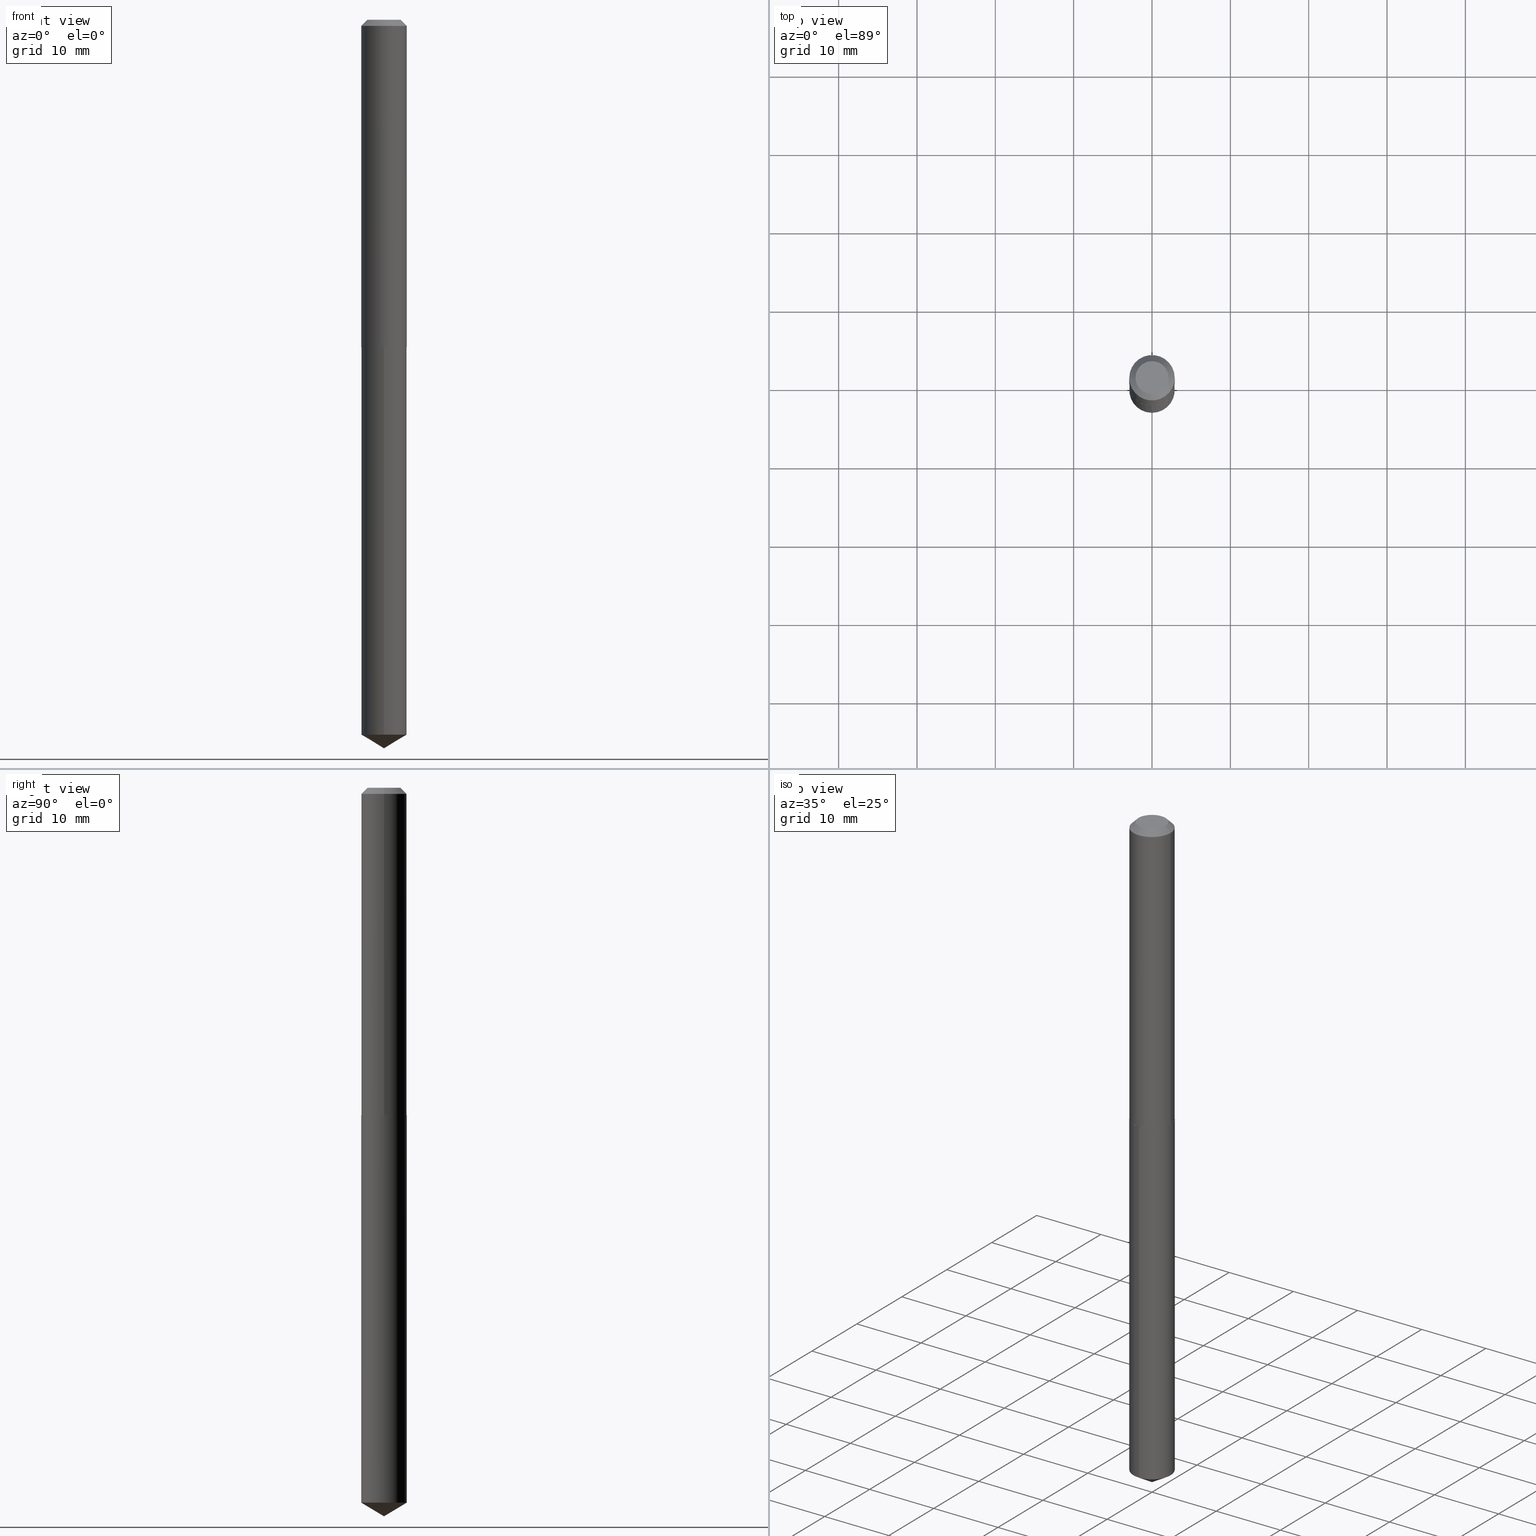
[diagram: canonical four-view strip — front | top / right | iso, engineering-drawing reading convention]
A machine part, canonical four-view strip (front | top / right | iso — engineering-drawing reading convention). The complete STEP part file that produces these views, byte-faithful:
ISO-10303-21;
HEADER;
FILE_DESCRIPTION (( 'STEP AP203' ),
    '1' );
FILE_NAME ('68332.STEP',
    '2024-04-23T13:07:52',
    ( '' ),
    ( '' ),
    'SwSTEP 2.0',
    'SolidWorks 2023',
    '' );
FILE_SCHEMA (( 'CONFIG_CONTROL_DESIGN' ));
ENDSEC;

DATA;
#1 = CARTESIAN_POINT ( 'NONE',  ( 8.953840329367400053E-29, -1.278370856767391255E-14, -3.661399999999999988 ) ) ;
#2 = CIRCLE ( 'NONE', #54, 0.1141500000000000015 ) ;
#3 = CIRCLE ( 'NONE', #245, 0.1141500000000000015 ) ;
#4 = CARTESIAN_POINT ( 'NONE',  ( 0.08289999999999998759, -7.304849611498646429E-16, 2.388061258383121680E-19 ) ) ;
#5 = CONICAL_SURFACE ( 'NONE', #35, 65.52281426576919898, 1.029744258676659641 ) ;
#6 = DIRECTION ( 'NONE',  ( 1.000000000000000000, -6.982962677686269866E-15, 0.000000000000000000 ) ) ;
#7 = EDGE_CURVE ( 'NONE', #240, #353, #32, .T. ) ;
#8 = FACE_OUTER_BOUND ( 'NONE', #284, .T. ) ;
#9 = APPROVAL ( #141, 'UNSPECIFIED' ) ;
#10 = DIRECTION ( 'NONE',  ( 2.445468806185136597E-29, -3.491481338843145583E-15, -1.000000000000000000 ) ) ;
#11 = CIRCLE ( 'NONE', #121, 0.1141500000000000015 ) ;
#12 = CIRCLE ( 'NONE', #189, 0.1136500000000005700 ) ;
#13 = ADVANCED_FACE ( 'NONE', ( #248 ), #349, .T. ) ;
#14 = DIRECTION ( 'NONE',  ( -6.982962677686264344E-15, -1.000000000000000000, 2.393208930060677491E-15 ) ) ;
#15 = FACE_OUTER_BOUND ( 'NONE', #174, .T. ) ;
#16 = VECTOR ( 'NONE', #370, 39.37007874015748143 ) ;
#17 = APPROVAL_DATE_TIME ( #145, #329 ) ;
#18 = EDGE_LOOP ( 'NONE', ( #268, #357, #331, #85 ) ) ;
#19 = EDGE_CURVE ( 'NONE', #236, #26, #176, .T. ) ;
#20 = ORIENTED_EDGE ( 'NONE', *, *, #326, .F. ) ;
#21 = PERSON_AND_ORGANIZATION ( #37, #55 ) ;
#22 = ORIENTED_EDGE ( 'NONE', *, *, #40, .T. ) ;
#23 = VECTOR ( 'NONE', #252, 39.37007874015748854 ) ;
#24 = PERSON_AND_ORGANIZATION ( #37, #55 ) ;
#25 = VERTEX_POINT ( 'NONE', #156 ) ;
#26 = VERTEX_POINT ( 'NONE', #341 ) ;
#27 = CARTESIAN_POINT ( 'NONE',  ( -7.971051896578468938E-16, -0.1141500000000057469, -1.645599999999999508 ) ) ;
#28 = VECTOR ( 'NONE', #366, 39.37007874015748854 ) ;
#29 = LOCAL_TIME ( 9, 7, 52.00000000000000000, #295 ) ;
#30 = APPROVAL_DATE_TIME ( #362, #241 ) ;
#31 = DIRECTION ( 'NONE',  ( -6.982962677686264344E-15, -1.000000000000000000, 4.786417860121354983E-15 ) ) ;
#32 = LINE ( 'NONE', #27, #216 ) ;
#33 = CALENDAR_DATE ( 2024, 23, 4 ) ;
#34 = FACE_OUTER_BOUND ( 'NONE', #51, .T. ) ;
#35 = AXIS2_PLACEMENT_3D ( 'NONE', #191, #102, #101 ) ;
#36 = DIRECTION ( 'NONE',  ( -1.000000000000000000, 6.982962677686265922E-15, -4.876176775795935793E-29 ) ) ;
#37 = PERSON ( 'UNSPECIFIED', 'UNSPECIFIED', 'UNSPECIFIED', ('UNSPECIFIED'), ('UNSPECIFIED'), ('UNSPECIFIED') ) ;
#38 = DIRECTION ( 'NONE',  ( -6.982962677686264344E-15, -1.000000000000000000, 2.393208930060677491E-15 ) ) ;
#39 = FACE_OUTER_BOUND ( 'NONE', #206, .T. ) ;
#40 = EDGE_CURVE ( 'NONE', #47, #240, #97, .T. ) ;
#41 = CARTESIAN_POINT ( 'NONE',  ( 4.024263467458259965E-29, -5.745581691200278949E-15, -1.645599999999999730 ) ) ;
#42 = AXIS2_PLACEMENT_3D ( 'NONE', #286, #342, #6 ) ;
#43 = DIRECTION ( 'NONE',  ( 1.000000000000000000, -6.982962677686268288E-15, 0.000000000000000000 ) ) ;
#44 = FACE_OUTER_BOUND ( 'NONE', #149, .T. ) ;
#45 = EDGE_CURVE ( 'NONE', #202, #240, #152, .T. ) ;
#46 = CALENDAR_DATE ( 2024, 23, 4 ) ;
#47 = VERTEX_POINT ( 'NONE', #365 ) ;
#48 = AXIS2_PLACEMENT_3D ( 'NONE', #348, #10, #104 ) ;
#49 = ORIENTED_EDGE ( 'NONE', *, *, #70, .F. ) ;
#50 = DIRECTION ( 'NONE',  ( 0.000000000000000000, 0.000000000000000000, 1.000000000000000000 ) ) ;
#51 = EDGE_LOOP ( 'NONE', ( #88, #57, #171, #270 ) ) ;
#52 = EDGE_CURVE ( 'NONE', #263, #238, #249, .T. ) ;
#53 = ORIENTED_EDGE ( 'NONE', *, *, #230, .F. ) ;
#54 = AXIS2_PLACEMENT_3D ( 'NONE', #63, #389, #96 ) ;
#55 = ORGANIZATION ( 'UNSPECIFIED', 'UNSPECIFIED', '' ) ;
#56 = CC_DESIGN_PERSON_AND_ORGANIZATION_ASSIGNMENT ( #211, #247, ( #83 ) ) ;
#57 = ORIENTED_EDGE ( 'NONE', *, *, #277, .T. ) ;
#58 = FACE_OUTER_BOUND ( 'NONE', #229, .T. ) ;
#59 = PERSON_AND_ORGANIZATION_ROLE ( 'design_supplier' ) ;
#60 = DIRECTION ( 'NONE',  ( -2.445471081714961586E-29, 3.491478080154921275E-15, 1.000000000000000000 ) ) ;
#61 = CC_DESIGN_APPROVAL ( #241, ( #83 ) ) ;
#62 = CARTESIAN_POINT ( 'NONE',  ( 0.000000000000000000, 0.000000000000000000, 0.000000000000000000 ) ) ;
#63 = CARTESIAN_POINT ( 'NONE',  ( 7.642090019328607041E-31, -1.091087918388490883E-16, -0.03125000000000022898 ) ) ;
#64 = EDGE_CURVE ( 'NONE', #328, #236, #246, .T. ) ;
#65 = MANIFOLD_SOLID_BREP ( 'Body-Move/Copy2[2]', #132 ) ;
#66 = CARTESIAN_POINT ( 'NONE',  ( -0.1141500000000000986, 8.110845328701550628E-16, -5.614964405525979576E-30 ) ) ;
#67 = AXIS2_PLACEMENT_3D ( 'NONE', #213, #336, #182 ) ;
#68 = AXIS2_PLACEMENT_3D ( 'NONE', #306, #317, #225 ) ;
#69 = CYLINDRICAL_SURFACE ( 'NONE', #250, 0.1141500000000000015 ) ;
#70 = EDGE_CURVE ( 'NONE', #26, #236, #2, .T. ) ;
#71 = DIRECTION ( 'NONE',  ( -6.982962677686264344E-15, -1.000000000000000000, 2.393208930060677491E-15 ) ) ;
#72 = FACE_OUTER_BOUND ( 'NONE', #115, .T. ) ;
#73 = FACE_OUTER_BOUND ( 'NONE', #18, .T. ) ;
#74 = VECTOR ( 'NONE', #279, 39.37007874015748143 ) ;
#75 = AXIS2_PLACEMENT_3D ( 'NONE', #203, #325, #269 ) ;
#76 = DIRECTION ( 'NONE',  ( -2.445471081714961586E-29, 3.491478080154921275E-15, 1.000000000000000000 ) ) ;
#77 = ADVANCED_FACE ( 'NONE', ( #34 ), #138, .T. ) ;
#78 = COORDINATED_UNIVERSAL_TIME_OFFSET ( 5, 0, .BEHIND. ) ;
#79 = ORIENTED_EDGE ( 'NONE', *, *, #230, .T. ) ;
#80 = CC_DESIGN_PERSON_AND_ORGANIZATION_ASSIGNMENT ( #298, #201, ( #175 ) ) ;
#81 = COORDINATED_UNIVERSAL_TIME_OFFSET ( 5, 0, .BEHIND. ) ;
#82 = VERTEX_POINT ( 'NONE', #91 ) ;
#83 = SECURITY_CLASSIFICATION ( '', '', #126 ) ;
#84 = CARTESIAN_POINT ( 'NONE',  ( 0.000000000000000000, 0.000000000000000000, 0.000000000000000000 ) ) ;
#85 = ORIENTED_EDGE ( 'NONE', *, *, #264, .F. ) ;
#86 = APPLICATION_CONTEXT ( 'configuration controlled 3d designs of mechanical parts and assemblies' ) ;
#87 = ORIENTED_EDGE ( 'NONE', *, *, #150, .F. ) ;
#88 = ORIENTED_EDGE ( 'NONE', *, *, #52, .F. ) ;
#89 = CC_DESIGN_SECURITY_CLASSIFICATION ( #83, ( #178 ) ) ;
#90 = SHAPE_DEFINITION_REPRESENTATION ( #124, #372 ) ;
#91 = CARTESIAN_POINT ( 'NONE',  ( 0.1136500000000005700, -6.539195399519326814E-15, -1.645599999999999508 ) ) ;
#92 = EDGE_CURVE ( 'NONE', #25, #26, #98, .T. ) ;
#93 = CARTESIAN_POINT ( 'NONE',  ( 0.1141500000000000986, -7.971051896578880132E-16, 5.566155789571065091E-30 ) ) ;
#94 = EDGE_CURVE ( 'NONE', #47, #160, #275, .T. ) ;
#95 = DATE_TIME_ROLE ( 'classification_date' ) ;
#96 = DIRECTION ( 'NONE',  ( 1.000000000000000000, -6.982962677686266711E-15, 0.000000000000000000 ) ) ;
#97 = CIRCLE ( 'NONE', #200, 0.1141500000000000015 ) ;
#98 = LINE ( 'NONE', #99, #308 ) ;
#99 = CARTESIAN_POINT ( 'NONE',  ( -0.1141500000000000015, 6.879963978190382223E-16, -0.03125000000000022898 ) ) ;
#100 = CC_DESIGN_DATE_AND_TIME_ASSIGNMENT ( #143, #205, ( #390 ) ) ;
#101 = DIRECTION ( 'NONE',  ( -6.982962677686267499E-15, -1.000000000000000000, 3.468864327941553588E-15 ) ) ;
#102 = DIRECTION ( 'NONE',  ( -2.445471081714961586E-29, 3.491478080154921275E-15, 1.000000000000000000 ) ) ;
#103 = CARTESIAN_POINT ( 'NONE',  ( 7.642090019328607041E-31, -1.091087918388490883E-16, -0.03125000000000022898 ) ) ;
#104 = DIRECTION ( 'NONE',  ( -1.000000000000000000, 6.982962677686266711E-15, 0.000000000000000000 ) ) ;
#105 = APPLICATION_CONTEXT ( 'configuration controlled 3d designs of mechanical parts and assemblies' ) ;
#106 = LINE ( 'NONE', #321, #128 ) ;
#107 = CC_DESIGN_APPROVAL ( #329, ( #390 ) ) ;
#108 =( NAMED_UNIT ( * ) SI_UNIT ( $, .STERADIAN. ) SOLID_ANGLE_UNIT ( ) );
#109 = DIMENSIONAL_EXPONENTS ( 1.000000000000000000, 0.000000000000000000, 0.000000000000000000, 0.000000000000000000, 0.000000000000000000, 0.000000000000000000, 0.000000000000000000 ) ;
#110 = VERTEX_POINT ( 'NONE', #4 ) ;
#111 = CC_DESIGN_PERSON_AND_ORGANIZATION_ASSIGNMENT ( #265, #112, ( #178 ) ) ;
#112 = PERSON_AND_ORGANIZATION_ROLE ( 'creator' ) ;
#113 = ORIENTED_EDGE ( 'NONE', *, *, #7, .F. ) ;
#114 = CARTESIAN_POINT ( 'NONE',  ( -7.971051896578468938E-16, -0.1141500000000057469, -1.645599999999999508 ) ) ;
#115 = EDGE_LOOP ( 'NONE', ( #142, #303, #232, #113 ) ) ;
#116 = CARTESIAN_POINT ( 'NONE',  ( -5.839929314523198503E-48, 8.337871319499114970E-34, 2.388061258337343770E-19 ) ) ;
#117 = ORIENTED_EDGE ( 'NONE', *, *, #40, .F. ) ;
#118 = APPROVAL_STATUS ( 'not_yet_approved' ) ;
#119 = EDGE_LOOP ( 'NONE', ( #20, #382, #117 ) ) ;
#120 = CARTESIAN_POINT ( 'NONE',  ( 4.024263467458259965E-29, -5.745581691200278160E-15, -1.645599999999999508 ) ) ;
#121 = AXIS2_PLACEMENT_3D ( 'NONE', #217, #339, #215 ) ;
#122 = AXIS2_PLACEMENT_3D ( 'NONE', #260, #287, #318 ) ;
#123 = DIRECTION ( 'NONE',  ( 1.000000000000000000, -6.982962677686269866E-15, 0.000000000000000000 ) ) ;
#124 = PRODUCT_DEFINITION_SHAPE ( 'NONE', 'NONE',  #390 ) ;
#125 = DIRECTION ( 'NONE',  ( -2.445471081714961586E-29, 3.491478080154921275E-15, 1.000000000000000000 ) ) ;
#126 = SECURITY_CLASSIFICATION_LEVEL ( 'unclassified' ) ;
#127 = DIRECTION ( 'NONE',  ( -2.445468806185136597E-29, 3.491481338843145583E-15, 1.000000000000000000 ) ) ;
#128 = VECTOR ( 'NONE', #227, 39.37007874015748854 ) ;
#129 = DIRECTION ( 'NONE',  ( -2.445468806185136597E-29, 3.491481338843145583E-15, 1.000000000000000000 ) ) ;
#130 = CARTESIAN_POINT ( 'NONE',  ( 0.1141500000000000015, -9.062139814967364236E-16, -0.03125000000000022898 ) ) ;
#131 = DIRECTION ( 'NONE',  ( -6.982962677686264344E-15, -1.000000000000000000, 2.393208930060677491E-15 ) ) ;
#132 = CLOSED_SHELL ( 'NONE', ( #271, #212, #257, #346, #77, #157, #340, #285 ) ) ;
#133 = CARTESIAN_POINT ( 'NONE',  ( 4.024263467458259965E-29, -5.745581691200278949E-15, -1.645599999999999730 ) ) ;
#134 = ORIENTED_EDGE ( 'NONE', *, *, #92, .F. ) ;
#135 = FACE_OUTER_BOUND ( 'NONE', #204, .T. ) ;
#136 = EDGE_CURVE ( 'NONE', #238, #328, #188, .T. ) ;
#137 = DIRECTION ( 'NONE',  ( 1.000000000000000000, -6.982962677686269866E-15, 0.000000000000000000 ) ) ;
#138 = CONICAL_SURFACE ( 'NONE', #261, 0.1141500000000001958, 0.7853981633974482790 ) ;
#139 = DATE_AND_TIME ( #381, #320 ) ;
#140 = CONICAL_SURFACE ( 'NONE', #147, 0.1141500000000001958, 0.7853981633974482790 ) ;
#141 = APPROVAL_STATUS ( 'not_yet_approved' ) ;
#142 = ORIENTED_EDGE ( 'NONE', *, *, #150, .T. ) ;
#143 = DATE_AND_TIME ( #169, #183 ) ;
#144 = EDGE_LOOP ( 'NONE', ( #266, #294, #185, #49 ) ) ;
#145 = DATE_AND_TIME ( #46, #29 ) ;
#146 = ORIENTED_EDGE ( 'NONE', *, *, #222, .T. ) ;
#147 = AXIS2_PLACEMENT_3D ( 'NONE', #163, #283, #137 ) ;
#148 = DIRECTION ( 'NONE',  ( 1.000000000000000000, 0.000000000000000000, 0.000000000000000000 ) ) ;
#149 = EDGE_LOOP ( 'NONE', ( #288, #146 ) ) ;
#150 = EDGE_CURVE ( 'NONE', #240, #47, #11, .T. ) ;
#151 = CARTESIAN_POINT ( 'NONE',  ( 8.110845328701945059E-16, 0.1141499999999942422, -1.645599999999999952 ) ) ;
#152 = LINE ( 'NONE', #1, #23 ) ;
#153 = CC_DESIGN_PERSON_AND_ORGANIZATION_ASSIGNMENT ( #158, #59, ( #178 ) ) ;
#154 = CLOSED_SHELL ( 'NONE', ( #344, #253, #13, #305, #364 ) ) ;
#155 = CIRCLE ( 'NONE', #338, 0.1141500000000000015 ) ;
#156 = CARTESIAN_POINT ( 'NONE',  ( -0.08289999999999998759, 6.334420018996148552E-16, 2.388061258294954052E-19 ) ) ;
#157 = ADVANCED_FACE ( 'NONE', ( #335 ), #309, .T. ) ;
#158 = PERSON_AND_ORGANIZATION ( #37, #55 ) ;
#159 = DIRECTION ( 'NONE',  ( -2.445471081714961586E-29, 3.491478080154921275E-15, 1.000000000000000000 ) ) ;
#160 = VERTEX_POINT ( 'NONE', #218 ) ;
#161 = LOCAL_TIME ( 9, 7, 52.00000000000000000, #274 ) ;
#162 = DIRECTION ( 'NONE',  ( -2.445468806185136597E-29, 3.491481338843145583E-15, 1.000000000000000000 ) ) ;
#163 = CARTESIAN_POINT ( 'NONE',  ( 4.023040733055167724E-29, -5.743835950530858234E-15, -1.645099999999999785 ) ) ;
#164 = FACE_OUTER_BOUND ( 'NONE', #356, .T. ) ;
#165 = DIRECTION ( 'NONE',  ( -2.445471081714961586E-29, 3.491478080154921275E-15, 1.000000000000000000 ) ) ;
#166 = EDGE_CURVE ( 'NONE', #238, #26, #337, .T. ) ;
#167 = CARTESIAN_POINT ( 'NONE',  ( -2.919964657261599251E-48, 4.168935659749557485E-34, 1.194030629168671885E-19 ) ) ;
#168 = DIRECTION ( 'NONE',  ( -2.445468806185136597E-29, 3.491481338843145583E-15, 1.000000000000000000 ) ) ;
#169 = CALENDAR_DATE ( 2024, 23, 4 ) ;
#170 = AXIS2_PLACEMENT_3D ( 'NONE', #41, #165, #14 ) ;
#171 = ORIENTED_EDGE ( 'NONE', *, *, #264, .T. ) ;
#172 = APPLICATION_PROTOCOL_DEFINITION ( 'international standard', 'config_control_design', 1994, #86 ) ;
#173 = ORIENTED_EDGE ( 'NONE', *, *, #45, .F. ) ;
#174 = EDGE_LOOP ( 'NONE', ( #179, #22, #296, #380 ) ) ;
#175 = PRODUCT ( '68332', '68332', '', ( #231 ) ) ;
#176 = CIRCLE ( 'NONE', #243, 0.1141500000000000015 ) ;
#177 = ORIENTED_EDGE ( 'NONE', *, *, #92, .T. ) ;
#178 = PRODUCT_DEFINITION_FORMATION_WITH_SPECIFIED_SOURCE ( 'ANY', '', #175, .NOT_KNOWN. ) ;
#179 = ORIENTED_EDGE ( 'NONE', *, *, #94, .F. ) ;
#180 = CYLINDRICAL_SURFACE ( 'NONE', #68, 0.1141500000000000986 ) ;
#181 = DESIGN_CONTEXT ( 'detailed design', #105, 'design' ) ;
#182 = DIRECTION ( 'NONE',  ( 1.000000000000000000, -6.982962677686269866E-15, 0.000000000000000000 ) ) ;
#183 = LOCAL_TIME ( 9, 7, 52.00000000000000000, #81 ) ;
#184 = DATE_AND_TIME ( #33, #161 ) ;
#185 = ORIENTED_EDGE ( 'NONE', *, *, #64, .T. ) ;
#186 = CARTESIAN_POINT ( 'NONE',  ( 8.786113517340136323E-29, -1.254422886984030154E-14, -3.592811760338004756 ) ) ;
#187 = DIRECTION ( 'NONE',  ( -2.445468806185136877E-29, 3.491481338843145188E-15, 1.000000000000000000 ) ) ;
#188 = CIRCLE ( 'NONE', #67, 0.1141500000000001958 ) ;
#189 = AXIS2_PLACEMENT_3D ( 'NONE', #254, #162, #43 ) ;
#190 = DIRECTION ( 'NONE',  ( -2.445471081714961586E-29, 3.491478080154921275E-15, 1.000000000000000000 ) ) ;
#191 = CARTESIAN_POINT ( 'NONE',  ( -8.732454496991685576E-28, 1.246760637300565508E-13, 35.70867874015748100 ) ) ;
#192 = CYLINDRICAL_SURFACE ( 'NONE', #170, 0.1141500000000000015 ) ;
#193 = AXIS2_PLACEMENT_3D ( 'NONE', #167, #351, #36 ) ;
#194 = CARTESIAN_POINT ( 'NONE',  ( -0.1136500000000005700, -4.935400644834811315E-15, -1.645599999999999508 ) ) ;
#195 = CC_DESIGN_PERSON_AND_ORGANIZATION_ASSIGNMENT ( #24, #237, ( #390 ) ) ;
#196 = LINE ( 'NONE', #255, #371 ) ;
#197 = MANIFOLD_SOLID_BREP ( 'Body-Move/Copy2[1]', #154 ) ;
#198 = APPLICATION_PROTOCOL_DEFINITION ( 'international standard', 'config_control_design', 1994, #105 ) ;
#199 = ORIENTED_EDGE ( 'NONE', *, *, #166, .T. ) ;
#200 = AXIS2_PLACEMENT_3D ( 'NONE', #186, #210, #31 ) ;
#201 = PERSON_AND_ORGANIZATION_ROLE ( 'design_owner' ) ;
#202 = VERTEX_POINT ( 'NONE', #386 ) ;
#203 = CARTESIAN_POINT ( 'NONE',  ( 6.786437830069702545E-29, -1.789990790739299120E-15, -1.645599999999999508 ) ) ;
#204 = EDGE_LOOP ( 'NONE', ( #384, #208 ) ) ;
#205 = DATE_TIME_ROLE ( 'creation_date' ) ;
#206 = EDGE_LOOP ( 'NONE', ( #173, #379, #87 ) ) ;
#207 = EDGE_CURVE ( 'NONE', #82, #263, #291, .T. ) ;
#208 = ORIENTED_EDGE ( 'NONE', *, *, #277, .F. ) ;
#209 = AXIS2_PLACEMENT_3D ( 'NONE', #120, #244, #361 ) ;
#210 = DIRECTION ( 'NONE',  ( -2.445471081714961586E-29, 3.491478080154921275E-15, 1.000000000000000000 ) ) ;
#211 = PERSON_AND_ORGANIZATION ( #37, #55 ) ;
#212 = ADVANCED_FACE ( 'NONE', ( #58 ), #180, .T. ) ;
#213 = CARTESIAN_POINT ( 'NONE',  ( 4.023040733055167724E-29, -5.743835950530858234E-15, -1.645099999999999785 ) ) ;
#214 = APPROVAL_ROLE ( '' ) ;
#215 = DIRECTION ( 'NONE',  ( -6.982962677686264344E-15, -1.000000000000000000, 4.786417860121354983E-15 ) ) ;
#216 = VECTOR ( 'NONE', #125, 39.37007874015748143 ) ;
#217 = CARTESIAN_POINT ( 'NONE',  ( 8.786113517340136323E-29, -1.254422886984030154E-14, -3.592811760338004756 ) ) ;
#218 = CARTESIAN_POINT ( 'NONE',  ( 8.110845328702424292E-16, 0.1141499999999942422, -1.645599999999999952 ) ) ;
#219 = CARTESIAN_POINT ( 'NONE',  ( 0.1141500000000001958, -6.540941140188746740E-15, -1.645099999999999785 ) ) ;
#220 = AXIS2_PLACEMENT_3D ( 'NONE', #116, #168, #358 ) ;
#221 = DIRECTION ( 'NONE',  ( 6.090539988449798946E-15, 0.8571673007021168855, 0.5150380749100467170 ) ) ;
#222 = EDGE_CURVE ( 'NONE', #160, #353, #155, .T. ) ;
#223 = CARTESIAN_POINT ( 'NONE',  ( -0.1141500000000001958, -4.932751417660702481E-15, -1.645099999999999785 ) ) ;
#224 = ORIENTED_EDGE ( 'NONE', *, *, #64, .F. ) ;
#225 = DIRECTION ( 'NONE',  ( 1.000000000000000000, -6.982962677686266711E-15, 4.876176775795935232E-29 ) ) ;
#226 = CONICAL_SURFACE ( 'NONE', #48, 0.1141500000000000015, 0.7853981633974447263 ) ;
#227 = DIRECTION ( 'NONE',  ( 0.7071067811865474617, -2.468850131082256666E-15, 0.7071067811865474617 ) ) ;
#228 =( NAMED_UNIT ( * ) PLANE_ANGLE_UNIT ( ) SI_UNIT ( $, .RADIAN. ) );
#229 = EDGE_LOOP ( 'NONE', ( #352, #199, #333, #224 ) ) ;
#230 = EDGE_CURVE ( 'NONE', #110, #236, #316, .T. ) ;
#231 = MECHANICAL_CONTEXT ( 'NONE', #86, 'mechanical' ) ;
#232 = ORIENTED_EDGE ( 'NONE', *, *, #290, .F. ) ;
#233 = PRODUCT_RELATED_PRODUCT_CATEGORY ( 'detail', '', ( #175 ) ) ;
#234 = AXIS2_PLACEMENT_3D ( 'NONE', #62, #129, #313 ) ;
#235 = APPROVAL_PERSON_ORGANIZATION ( #307, #241, #214 ) ;
#236 = VERTEX_POINT ( 'NONE', #130 ) ;
#237 = PERSON_AND_ORGANIZATION_ROLE ( 'creator' ) ;
#238 = VERTEX_POINT ( 'NONE', #223 ) ;
#239 = PERSON_AND_ORGANIZATION ( #37, #55 ) ;
#240 = VERTEX_POINT ( 'NONE', #374 ) ;
#241 = APPROVAL ( #251, 'UNSPECIFIED' ) ;
#242 = CALENDAR_DATE ( 2024, 23, 4 ) ;
#243 = AXIS2_PLACEMENT_3D ( 'NONE', #312, #127, #280 ) ;
#244 = DIRECTION ( 'NONE',  ( -2.445468806185136597E-29, 3.491481338843145583E-15, 1.000000000000000000 ) ) ;
#245 = AXIS2_PLACEMENT_3D ( 'NONE', #289, #345, #71 ) ;
#246 = LINE ( 'NONE', #93, #74 ) ;
#247 = PERSON_AND_ORGANIZATION_ROLE ( 'classification_officer' ) ;
#248 = FACE_OUTER_BOUND ( 'NONE', #119, .T. ) ;
#249 = LINE ( 'NONE', #281, #28 ) ;
#250 = AXIS2_PLACEMENT_3D ( 'NONE', #375, #76, #131 ) ;
#251 = APPROVAL_STATUS ( 'not_yet_approved' ) ;
#252 = DIRECTION ( 'NONE',  ( -5.985567269335961790E-15, -0.8571673007021131108, 0.5150380749100526012 ) ) ;
#253 = ADVANCED_FACE ( 'NONE', ( #39 ), #5, .T. ) ;
#254 = CARTESIAN_POINT ( 'NONE',  ( 4.024263467458259965E-29, -5.745581691200278160E-15, -1.645599999999999508 ) ) ;
#255 = CARTESIAN_POINT ( 'NONE',  ( 8.953847884262811625E-29, -1.278369784267922746E-14, -3.661399999999999988 ) ) ;
#256 = APPROVAL_PERSON_ORGANIZATION ( #239, #9, #322 ) ;
#257 = ADVANCED_FACE ( 'NONE', ( #73 ), #140, .T. ) ;
#258 = PLANE ( 'NONE',  #193 ) ;
#259 = PLANE ( 'NONE',  #75 ) ;
#260 = CARTESIAN_POINT ( 'NONE',  ( -5.839929314523198503E-48, 8.337871319499114970E-34, 2.388061258337343770E-19 ) ) ;
#261 = AXIS2_PLACEMENT_3D ( 'NONE', #276, #388, #123 ) ;
#262 = APPROVAL_DATE_TIME ( #139, #9 ) ;
#263 = VERTEX_POINT ( 'NONE', #194 ) ;
#264 = EDGE_CURVE ( 'NONE', #82, #328, #106, .T. ) ;
#265 = PERSON_AND_ORGANIZATION ( #37, #55 ) ;
#266 = ORIENTED_EDGE ( 'NONE', *, *, #166, .F. ) ;
#267 = APPROVAL_ROLE ( '' ) ;
#268 = ORIENTED_EDGE ( 'NONE', *, *, #207, .T. ) ;
#269 = DIRECTION ( 'NONE',  ( 1.000000000000000000, -6.982962677686265922E-15, 4.876176775795935793E-29 ) ) ;
#270 = ORIENTED_EDGE ( 'NONE', *, *, #136, .F. ) ;
#271 = ADVANCED_FACE ( 'NONE', ( #164 ), #226, .T. ) ;
#272 = DIRECTION ( 'NONE',  ( 2.445471081714961026E-29, -3.491478080154921275E-15, -1.000000000000000000 ) ) ;
#273 = ORIENTED_EDGE ( 'NONE', *, *, #19, .T. ) ;
#274 = COORDINATED_UNIVERSAL_TIME_OFFSET ( 5, 0, .BEHIND. ) ;
#275 = LINE ( 'NONE', #151, #314 ) ;
#276 = CARTESIAN_POINT ( 'NONE',  ( 4.023040733055167724E-29, -5.743835950530858234E-15, -1.645099999999999785 ) ) ;
#277 = EDGE_CURVE ( 'NONE', #263, #82, #12, .T. ) ;
#278 = COORDINATED_UNIVERSAL_TIME_OFFSET ( 5, 0, .BEHIND. ) ;
#279 = DIRECTION ( 'NONE',  ( -2.445468806185136877E-29, 3.491481338843145188E-15, 1.000000000000000000 ) ) ;
#280 = DIRECTION ( 'NONE',  ( 1.000000000000000000, -6.982962677686266711E-15, 0.000000000000000000 ) ) ;
#281 = CARTESIAN_POINT ( 'NONE',  ( -0.1141500000000001958, -4.932751417660702481E-15, -1.645099999999999785 ) ) ;
#282 = CARTESIAN_POINT ( 'NONE',  ( 0.1141500000000000015, -8.922346382844693739E-16, -0.03125000000000022898 ) ) ;
#283 = DIRECTION ( 'NONE',  ( -2.445468806185136597E-29, 3.491481338843145583E-15, 1.000000000000000000 ) ) ;
#284 = EDGE_LOOP ( 'NONE', ( #327, #359 ) ) ;
#285 = ADVANCED_FACE ( 'NONE', ( #8 ), #258, .F. ) ;
#286 = CARTESIAN_POINT ( 'NONE',  ( 4.023040733055167724E-29, -5.743835950530858234E-15, -1.645099999999999785 ) ) ;
#287 = DIRECTION ( 'NONE',  ( -2.445468806185136597E-29, 3.491481338843145583E-15, 1.000000000000000000 ) ) ;
#288 = ORIENTED_EDGE ( 'NONE', *, *, #290, .T. ) ;
#289 = CARTESIAN_POINT ( 'NONE',  ( 4.024263467458259965E-29, -5.745581691200278949E-15, -1.645599999999999730 ) ) ;
#290 = EDGE_CURVE ( 'NONE', #353, #160, #3, .T. ) ;
#291 = CIRCLE ( 'NONE', #209, 0.1136500000000005700 ) ;
#292 = DIRECTION ( 'NONE',  ( 6.982962677686265922E-15, 1.000000000000000000, -3.491478080154921275E-15 ) ) ;
#293 = CC_DESIGN_DATE_AND_TIME_ASSIGNMENT ( #184, #95, ( #83 ) ) ;
#294 = ORIENTED_EDGE ( 'NONE', *, *, #136, .T. ) ;
#295 = COORDINATED_UNIVERSAL_TIME_OFFSET ( 5, 0, .BEHIND. ) ;
#296 = ORIENTED_EDGE ( 'NONE', *, *, #7, .T. ) ;
#297 = EDGE_CURVE ( 'NONE', #110, #25, #350, .T. ) ;
#298 = PERSON_AND_ORGANIZATION ( #37, #55 ) ;
#299 = ORIENTED_EDGE ( 'NONE', *, *, #376, .F. ) ;
#300 =( CONVERSION_BASED_UNIT ( 'INCH', #323 ) LENGTH_UNIT ( ) NAMED_UNIT ( #109 ) );
#301 = AXIS2_PLACEMENT_3D ( 'NONE', #84, #50, #148 ) ;
#302 = EDGE_LOOP ( 'NONE', ( #53, #299, #177, #324 ) ) ;
#303 = ORIENTED_EDGE ( 'NONE', *, *, #94, .T. ) ;
#304 = UNCERTAINTY_MEASURE_WITH_UNIT (LENGTH_MEASURE( 1.000000000000000082E-05 ), #300, 'distance_accuracy_value', 'NONE');
#305 = ADVANCED_FACE ( 'NONE', ( #15 ), #69, .T. ) ;
#306 = CARTESIAN_POINT ( 'NONE',  ( 0.000000000000000000, 0.000000000000000000, 0.000000000000000000 ) ) ;
#307 = PERSON_AND_ORGANIZATION ( #37, #55 ) ;
#308 = VECTOR ( 'NONE', #363, 39.37007874015748143 ) ;
#309 = CYLINDRICAL_SURFACE ( 'NONE', #234, 0.1141500000000000986 ) ;
#310 = CIRCLE ( 'NONE', #220, 0.08289999999999998759 ) ;
#311 = CARTESIAN_POINT ( 'NONE',  ( -8.732454496991685576E-28, 1.246760637300565508E-13, 35.70867874015748100 ) ) ;
#312 = CARTESIAN_POINT ( 'NONE',  ( 7.642090019328607041E-31, -1.091087918388490883E-16, -0.03125000000000022898 ) ) ;
#313 = DIRECTION ( 'NONE',  ( 1.000000000000000000, -6.982962677686266711E-15, 4.876176775795935232E-29 ) ) ;
#314 = VECTOR ( 'NONE', #60, 39.37007874015748143 ) ;
#315 =( GEOMETRIC_REPRESENTATION_CONTEXT ( 3 ) GLOBAL_UNCERTAINTY_ASSIGNED_CONTEXT ( ( #304 ) ) GLOBAL_UNIT_ASSIGNED_CONTEXT ( ( #300, #228, #108 ) ) REPRESENTATION_CONTEXT ( 'NONE', 'WORKASPACE' ) );
#316 = LINE ( 'NONE', #282, #16 ) ;
#317 = DIRECTION ( 'NONE',  ( -2.445468806185136597E-29, 3.491481338843145583E-15, 1.000000000000000000 ) ) ;
#318 = DIRECTION ( 'NONE',  ( 1.000000000000000000, -6.982962677686267499E-15, 4.876161766085693148E-29 ) ) ;
#319 = AXIS2_PLACEMENT_3D ( 'NONE', #311, #159, #368 ) ;
#320 = LOCAL_TIME ( 9, 7, 52.00000000000000000, #78 ) ;
#321 = CARTESIAN_POINT ( 'NONE',  ( 0.1141500000000001958, -6.540941140188746740E-15, -1.645099999999999785 ) ) ;
#322 = APPROVAL_ROLE ( '' ) ;
#323 = LENGTH_MEASURE_WITH_UNIT ( LENGTH_MEASURE( 0.02539999999999999897 ), #378 );
#324 = ORIENTED_EDGE ( 'NONE', *, *, #70, .T. ) ;
#325 = DIRECTION ( 'NONE',  ( -2.438088387897960049E-29, 3.491481338843145188E-15, 1.000000000000000000 ) ) ;
#326 = EDGE_CURVE ( 'NONE', #202, #47, #196, .T. ) ;
#327 = ORIENTED_EDGE ( 'NONE', *, *, #376, .T. ) ;
#328 = VERTEX_POINT ( 'NONE', #219 ) ;
#329 = APPROVAL ( #118, 'UNSPECIFIED' ) ;
#330 = PLANE ( 'NONE',  #387 ) ;
#331 = ORIENTED_EDGE ( 'NONE', *, *, #334, .F. ) ;
#332 = CC_DESIGN_APPROVAL ( #9, ( #178 ) ) ;
#333 = ORIENTED_EDGE ( 'NONE', *, *, #19, .F. ) ;
#334 = EDGE_CURVE ( 'NONE', #328, #238, #367, .T. ) ;
#335 = FACE_OUTER_BOUND ( 'NONE', #144, .T. ) ;
#336 = DIRECTION ( 'NONE',  ( -2.445468806185136597E-29, 3.491481338843145583E-15, 1.000000000000000000 ) ) ;
#337 = LINE ( 'NONE', #66, #354 ) ;
#338 = AXIS2_PLACEMENT_3D ( 'NONE', #133, #190, #38 ) ;
#339 = DIRECTION ( 'NONE',  ( -2.445471081714961586E-29, 3.491478080154921275E-15, 1.000000000000000000 ) ) ;
#340 = ADVANCED_FACE ( 'NONE', ( #373 ), #343, .T. ) ;
#341 = CARTESIAN_POINT ( 'NONE',  ( -0.1141500000000000015, -2.115387838314697520E-15, -0.03125000000000022898 ) ) ;
#342 = DIRECTION ( 'NONE',  ( -2.445468806185136597E-29, 3.491481338843145583E-15, 1.000000000000000000 ) ) ;
#343 = CONICAL_SURFACE ( 'NONE', #383, 0.1141500000000000015, 0.7853981633974447263 ) ;
#344 = ADVANCED_FACE ( 'NONE', ( #72 ), #192, .T. ) ;
#345 = DIRECTION ( 'NONE',  ( -2.445471081714961586E-29, 3.491478080154921275E-15, 1.000000000000000000 ) ) ;
#346 = ADVANCED_FACE ( 'NONE', ( #135 ), #259, .F. ) ;
#347 = DIRECTION ( 'NONE',  ( 2.445468806185136597E-29, -3.491481338843145583E-15, -1.000000000000000000 ) ) ;
#348 = CARTESIAN_POINT ( 'NONE',  ( 7.642090019328607041E-31, -1.091087918388490883E-16, -0.03125000000000022898 ) ) ;
#349 = CONICAL_SURFACE ( 'NONE', #319, 65.52281426576919898, 1.029744258676659641 ) ;
#350 = CIRCLE ( 'NONE', #122, 0.08289999999999998759 ) ;
#351 = DIRECTION ( 'NONE',  ( 2.438088387897960049E-29, -3.491481338843145188E-15, -1.000000000000000000 ) ) ;
#352 = ORIENTED_EDGE ( 'NONE', *, *, #334, .T. ) ;
#353 = VERTEX_POINT ( 'NONE', #114 ) ;
#354 = VECTOR ( 'NONE', #187, 39.37007874015748143 ) ;
#355 = CARTESIAN_POINT ( 'NONE',  ( 4.024263467458259965E-29, -5.745581691200278949E-15, -1.645599999999999730 ) ) ;
#356 = EDGE_LOOP ( 'NONE', ( #385, #79, #273, #134 ) ) ;
#357 = ORIENTED_EDGE ( 'NONE', *, *, #52, .T. ) ;
#358 = DIRECTION ( 'NONE',  ( 1.000000000000000000, -6.982962677686267499E-15, 4.876161766085693148E-29 ) ) ;
#359 = ORIENTED_EDGE ( 'NONE', *, *, #297, .T. ) ;
#360 = APPROVAL_PERSON_ORGANIZATION ( #21, #329, #267 ) ;
#361 = DIRECTION ( 'NONE',  ( 1.000000000000000000, -6.982962677686268288E-15, 0.000000000000000000 ) ) ;
#362 = DATE_AND_TIME ( #242, #377 ) ;
#363 = DIRECTION ( 'NONE',  ( -0.7071067811865450192, 2.468850131082230634E-15, -0.7071067811865500152 ) ) ;
#364 = ADVANCED_FACE ( 'NONE', ( #44 ), #330, .F. ) ;
#365 = CARTESIAN_POINT ( 'NONE',  ( 8.110845328702420348E-16, 0.1141499999999874421, -3.592811760338005200 ) ) ;
#366 = DIRECTION ( 'NONE',  ( -0.7071067811865474617, 7.493145998870352582E-15, 0.7071067811865474617 ) ) ;
#367 = CIRCLE ( 'NONE', #42, 0.1141500000000001958 ) ;
#368 = DIRECTION ( 'NONE',  ( -6.982962677686267499E-15, -1.000000000000000000, 3.468864327941553588E-15 ) ) ;
#369 = DIRECTION ( 'NONE',  ( -1.000000000000000000, 6.982962677686266711E-15, 0.000000000000000000 ) ) ;
#370 = DIRECTION ( 'NONE',  ( 0.7071067811865450192, -7.319954787623246579E-15, -0.7071067811865500152 ) ) ;
#371 = VECTOR ( 'NONE', #221, 39.37007874015748143 ) ;
#372 = ADVANCED_BREP_SHAPE_REPRESENTATION ( '68332', ( #197, #65, #301 ), #315 ) ;
#373 = FACE_OUTER_BOUND ( 'NONE', #302, .T. ) ;
#374 = CARTESIAN_POINT ( 'NONE',  ( -7.971051896577994635E-16, -0.1141500000000125470, -3.592811760338004312 ) ) ;
#375 = CARTESIAN_POINT ( 'NONE',  ( 4.024263467458259965E-29, -5.745581691200278949E-15, -1.645599999999999730 ) ) ;
#376 = EDGE_CURVE ( 'NONE', #25, #110, #310, .T. ) ;
#377 = LOCAL_TIME ( 9, 7, 52.00000000000000000, #278 ) ;
#378 =( LENGTH_UNIT ( ) NAMED_UNIT ( * ) SI_UNIT ( $, .METRE. ) );
#379 = ORIENTED_EDGE ( 'NONE', *, *, #326, .T. ) ;
#380 = ORIENTED_EDGE ( 'NONE', *, *, #222, .F. ) ;
#381 = CALENDAR_DATE ( 2024, 23, 4 ) ;
#382 = ORIENTED_EDGE ( 'NONE', *, *, #45, .T. ) ;
#383 = AXIS2_PLACEMENT_3D ( 'NONE', #103, #347, #369 ) ;
#384 = ORIENTED_EDGE ( 'NONE', *, *, #207, .F. ) ;
#385 = ORIENTED_EDGE ( 'NONE', *, *, #297, .F. ) ;
#386 = CARTESIAN_POINT ( 'NONE',  ( 8.953847818591158639E-29, -1.278369784267922746E-14, -3.661399999999999988 ) ) ;
#387 = AXIS2_PLACEMENT_3D ( 'NONE', #355, #272, #292 ) ;
#388 = DIRECTION ( 'NONE',  ( -2.445468806185136597E-29, 3.491481338843145583E-15, 1.000000000000000000 ) ) ;
#389 = DIRECTION ( 'NONE',  ( -2.445468806185136597E-29, 3.491481338843145583E-15, 1.000000000000000000 ) ) ;
#390 = PRODUCT_DEFINITION ( 'UNKNOWN', '', #178, #181 ) ;
ENDSEC;
END-ISO-10303-21;
